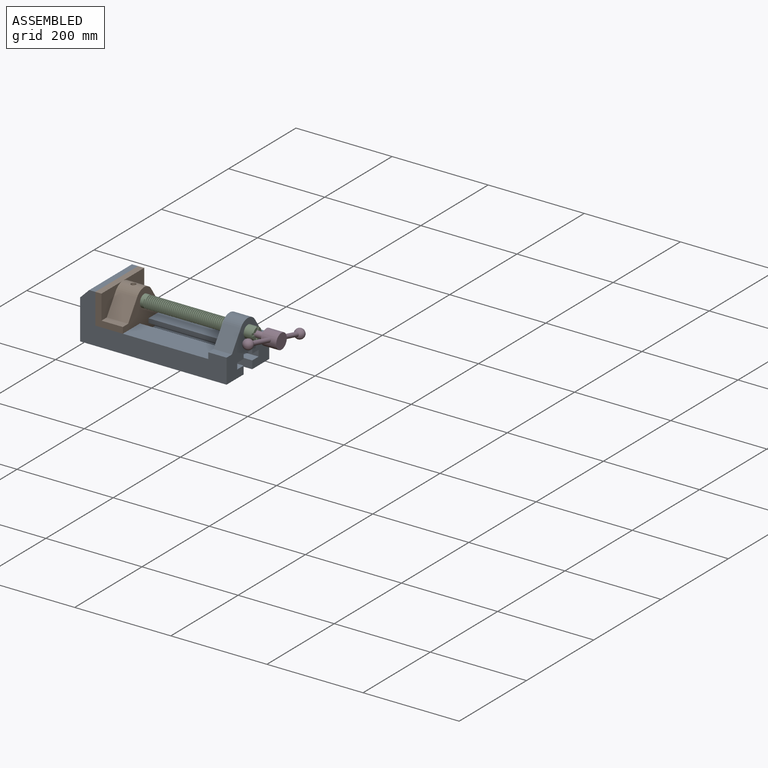
[diagram: assembled view]
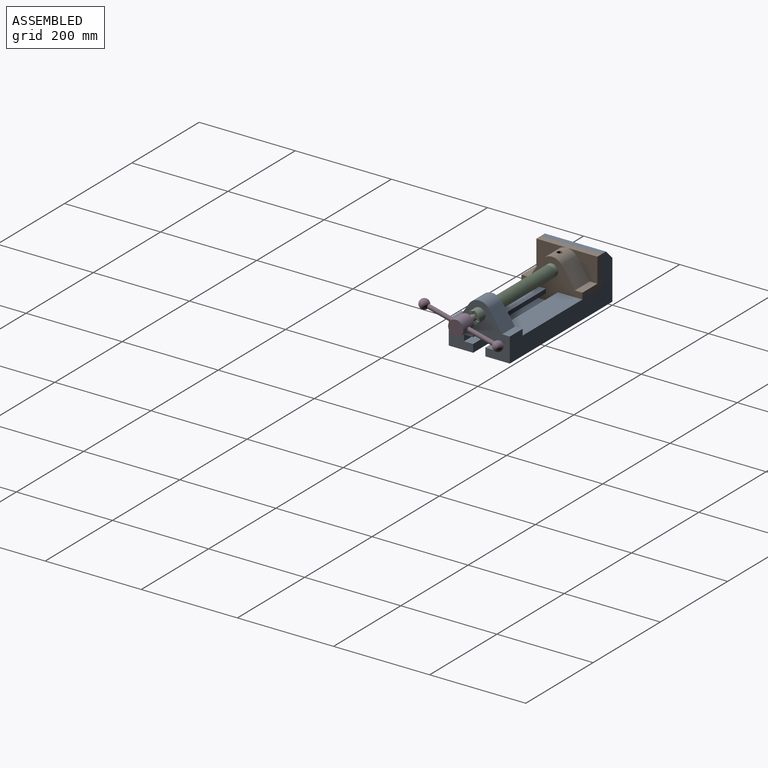
[diagram: assembled view, second angle]
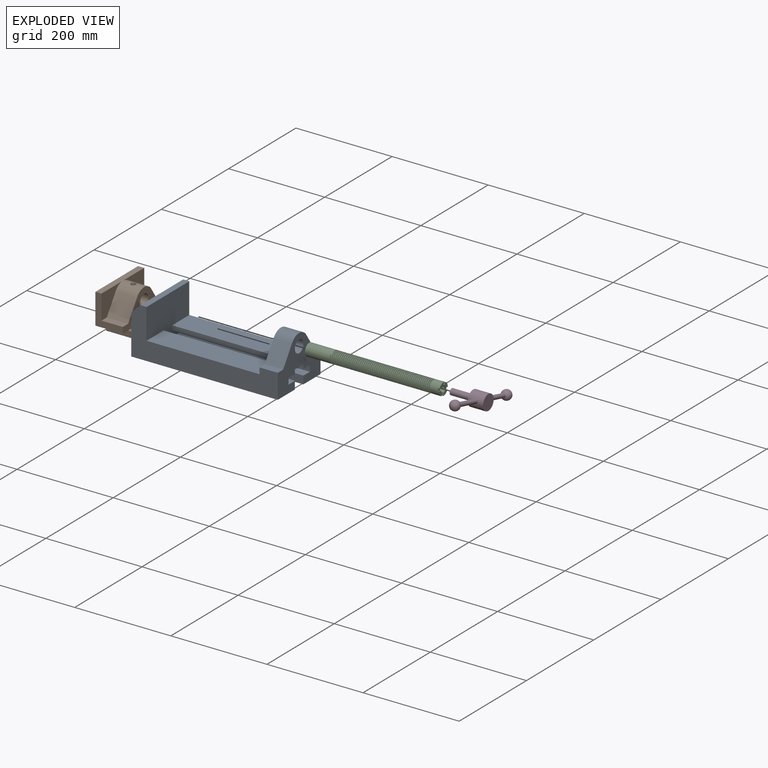
[diagram: exploded view]
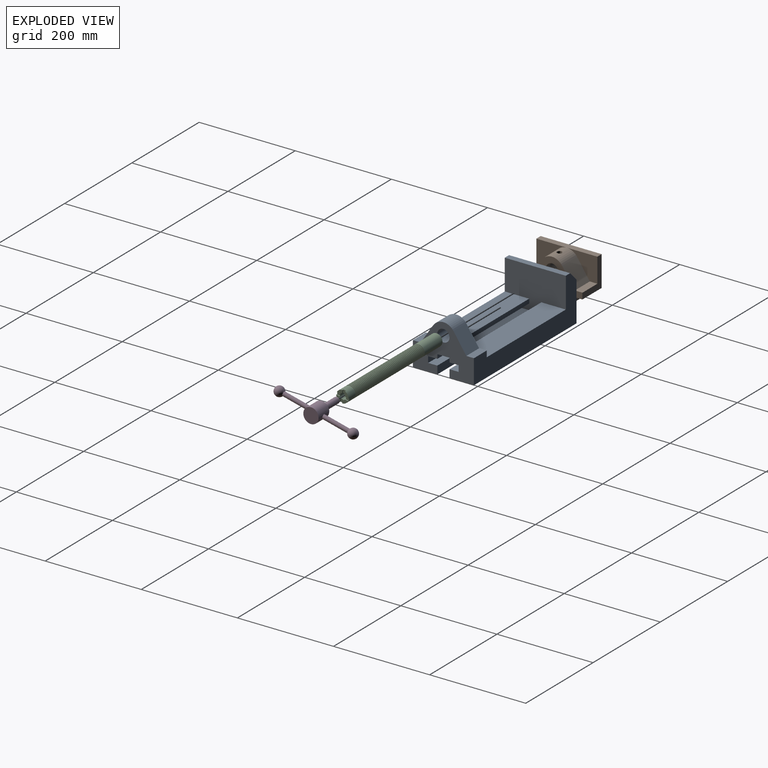
[diagram: exploded view, second angle]
ASSEMBLY  parts=4 mates=3
PART A: 28 faces, bbox 304.8x127x101.6 mm
  f0: plane 127x101.6mm, normal (1,0,0), area 7544.8mm2, adj f4,f5,f7,f11,f12,f13,f14,f15
  f1: plane 234.95x50.8mm, normal (0,0,1), area 11935.5mm2, adj f2,f4,f9,f23
  f2: plane 127x63.5mm, normal (-1,0,0), area 4157.7mm2, adj f1,f4,f5,f8,f11,f12,f13,f14
  f3: plane 127x12.7mm, normal (0,0,1), area 1612.9mm2, adj f4,f5,f9,f10
  f4: plane 304.8x101.6mm, normal (0,-1,0), area 13931.4mm2, adj f0,f1,f2,f3,f6,f7,f9,f10
  f5: plane 304.8x101.6mm, normal (0,1,0), area 13931.4mm2, adj f0,f2,f3,f6,f7,f8,f9,f10
  f6: plane 127x82.55mm, normal (-1,0,0), area 10483.8mm2, adj f4,f5,f7,f10
  f7: plane 304.8x127mm, normal (0,0,-1), area 31774.1mm2, adj f0,f4,f5,f6,f9,f18,f27
  f8: plane 234.95x50.8mm, normal (0,0,1), area 11935.5mm2, adj f2,f5,f9,f22
  f9: plane 127x101.6mm, normal (1,0,0), area 9516.1mm2, adj f1,f3,f4,f5,f7,f8,f18,f19
  f10: plane 127x19.05mm, normal (-0.71,0,0.71), area 3421.5mm2, adj f3,f4,f5,f6
  f11: plane 38.1x15.88mm, normal (0,0,1), area 604.8mm2, adj f0,f2,f5,f13
  f12: cylinder r=25.4mm len=42.19mm, axis (1,0,0), area 1896.6mm2, adj f0,f2,f13,f15
  f13: plane 39.55x38.1mm, normal (0,0.83,0.56), area 1814.5mm2, adj f0,f2,f11,f12
  f14: plane 38.1x15.88mm, normal (0,0,1), area 604.8mm2, adj f0,f2,f4,f15
  f15: plane 39.55x38.1mm, normal (0,-0.83,0.56), area 1814.5mm2, adj f0,f2,f12,f14
  f16: cylinder r=12.7mm len=38.1mm, axis (1,0,0), area 3040.2mm2, adj f0,f2
  f17: plane 38.1x25.4mm, normal (0,0,-1), area 967.7mm2, adj f0,f2,f22,f23
  f18: plane 273.05x16.51mm, normal (0,-1,0), area 4508.1mm2, adj f0,f7,f9,f19
  f19: plane 273.05x19.05mm, normal (0,0,1), area 5201.6mm2, adj f0,f9,f18,f20
  f20: plane 273.05x12.7mm, normal (0,-1,0), area 3467.7mm2, adj f0,f9,f19,f21
  f21: plane 273.05x19.05mm, normal (0,0,-1), area 5201.6mm2, adj f0,f9,f20,f22
  f22: plane 273.05x8.89mm, normal (0,-1,0), area 2427.4mm2, adj f0,f8,f9,f17,f21
  f23: plane 273.05x8.89mm, normal (0,1,0), area 2427.4mm2, adj f0,f1,f9,f17,f24
  f24: plane 273.05x19.05mm, normal (0,0,-1), area 5201.6mm2, adj f0,f9,f23,f25
  f25: plane 273.05x12.7mm, normal (0,1,0), area 3467.7mm2, adj f0,f9,f24,f26
  f26: plane 273.05x19.05mm, normal (0,0,1), area 5201.6mm2, adj f0,f9,f25,f27
  f27: plane 273.05x16.51mm, normal (0,1,0), area 4508.1mm2, adj f0,f7,f9,f26
PART B: 24 faces, bbox 127x57.2x85.1 mm
  f0: cylinder r=12.7mm len=44.45mm, axis (0,-1,0), area 3464.1mm2, adj f1,f19,f23
  f1: plane 127x85.09mm, normal (0,-1,0), area 5190mm2, adj f0,f3,f4,f5,f7,f8,f9,f10
  f2: plane 127x12.7mm, normal (0,0,1), area 1612.9mm2, adj f3,f5,f6,f18,f22
  f3: plane 63.5x57.15mm, normal (-1,0,0), area 1371mm2, adj f1,f2,f6,f12,f16,f18
  f4: plane 63.5x57.15mm, normal (0,0,-1), area 3629mm2, adj f1,f6,f7,f13
  f5: plane 63.5x57.15mm, normal (1,0,0), area 1371mm2, adj f1,f2,f6,f8,f20,f22
  f6: plane 127x85.09mm, normal (0,1,0), area 9096.8mm2, adj f2,f3,f4,f5,f7,f8,f9,f10
  f7: plane 57.15x12.7mm, normal (1,0,0), area 725.8mm2, adj f1,f4,f6,f10
  f8: plane 57.15x50.8mm, normal (0,0,-1), area 2903.2mm2, adj f1,f5,f6,f9
  f9: plane 57.15x8.89mm, normal (1,0,0), area 508.1mm2, adj f1,f6,f8,f10
  f10: plane 57.15x19.05mm, normal (0,0,1), area 1088.7mm2, adj f1,f6,f7,f9
  f11: plane 57.15x8.89mm, normal (-1,0,0), area 508.1mm2, adj f1,f6,f12,f14
  f12: plane 57.15x50.8mm, normal (0,0,-1), area 2903.2mm2, adj f1,f3,f6,f11
  f13: plane 57.15x12.7mm, normal (-1,0,0), area 725.8mm2, adj f1,f4,f6,f14
  f14: plane 57.15x19.05mm, normal (0,0,1), area 1088.7mm2, adj f1,f6,f11,f13
  f15: cylinder r=25.4mm len=44.45mm, axis (0,-1,0), area 2131.2mm2, adj f1,f17,f18,f21,f22,f23
  f16: plane 44.45x15.88mm, normal (0,0,1), area 705.6mm2, adj f1,f3,f17,f18
  f17: plane 44.45x39.55mm, normal (-0.83,0,0.56), area 2116.9mm2, adj f1,f15,f16,f18
  f18: plane 63.5x50.8mm, normal (0,-1,0), area 1700mm2, adj f2,f3,f15,f16,f17
  f19: plane 25.4x25.4mm, normal (0,-1,0), area 506.7mm2, adj f0
  f20: plane 44.45x15.88mm, normal (0,0,1), area 705.6mm2, adj f1,f5,f21,f22
  f21: plane 44.45x39.55mm, normal (0.83,0,0.56), area 2116.9mm2, adj f1,f15,f20,f22
  f22: plane 63.5x50.8mm, normal (0,-1,0), area 1700mm2, adj f2,f5,f15,f20,f21
  f23: cylinder r=5.08mm len=13.76mm, axis (0,0,1), area 413.9mm2, adj f0,f15
PART C: 79 faces, bbox 279.4x25.4x29.3 mm
  f0: plane 9.9x9.9mm, normal (1,0,0), area 62.3mm2, adj f4,f65,f68,f77
  f1: plane 9.9x9.9mm, normal (1,0,0), area 62.3mm2, adj f4,f69,f71,f77
  f2: plane 9.9x9.9mm, normal (1,0,0), area 62.3mm2, adj f4,f72,f74,f77
  f3: plane 9.9x9.9mm, normal (1,0,0), area 62.3mm2, adj f4,f66,f75,f77
  f4: cylinder r=12.7mm len=25.4mm, axis (-1,0,0), area 1540.5mm2, adj f0,f1,f2,f3,f5,f60,f63,f64
  f5: cylinder r=12.7mm len=25.4mm, axis (-1,0,0), area 101.3mm2, adj f4,f6,f63,f64
  f6: cylinder r=12.7mm len=25.4mm, axis (-1,0,0), area 101.3mm2, adj f5,f7,f63,f64
  f7: cylinder r=12.7mm len=25.4mm, axis (-1,0,0), area 101.4mm2, adj f6,f8,f63,f64
  f8: cylinder r=12.7mm len=25.4mm, axis (-1,0,0), area 101.4mm2, adj f7,f9,f63,f64
  f9: cylinder r=12.7mm len=25.4mm, axis (-1,0,0), area 101.3mm2, adj f8,f10,f63,f64
  f10: cylinder r=12.7mm len=25.4mm, axis (-1,0,0), area 101.3mm2, adj f9,f11,f63,f64
  f11: cylinder r=12.7mm len=25.4mm, axis (-1,0,0), area 101.3mm2, adj f10,f12,f63,f64
  f12: cylinder r=12.7mm len=25.4mm, axis (-1,0,0), area 101.3mm2, adj f11,f13,f63,f64
  f13: cylinder r=12.7mm len=25.4mm, axis (-1,0,0), area 101.3mm2, adj f12,f14,f63,f64
  f14: cylinder r=12.7mm len=25.4mm, axis (-1,0,0), area 101.4mm2, adj f13,f15,f63,f64
  f15: cylinder r=12.7mm len=25.4mm, axis (-1,0,0), area 101.4mm2, adj f14,f16,f63,f64
  f16: cylinder r=12.7mm len=25.4mm, axis (-1,0,0), area 101.3mm2, adj f15,f17,f63,f64
  f17: cylinder r=12.7mm len=25.4mm, axis (-1,0,0), area 101.3mm2, adj f16,f18,f63,f64
  f18: cylinder r=12.7mm len=25.4mm, axis (-1,0,0), area 101.3mm2, adj f17,f19,f63,f64
  f19: cylinder r=12.7mm len=25.4mm, axis (-1,0,0), area 101.3mm2, adj f18,f20,f63,f64
  f20: cylinder r=12.7mm len=25.4mm, axis (-1,0,0), area 101.3mm2, adj f19,f21,f63,f64
  f21: cylinder r=12.7mm len=25.4mm, axis (-1,0,0), area 101.4mm2, adj f20,f22,f63,f64
  f22: cylinder r=12.7mm len=25.4mm, axis (-1,0,0), area 101.4mm2, adj f21,f23,f63,f64
  f23: cylinder r=12.7mm len=25.4mm, axis (-1,0,0), area 101.3mm2, adj f22,f24,f63,f64
  f24: cylinder r=12.7mm len=25.4mm, axis (-1,0,0), area 101.3mm2, adj f23,f25,f63,f64
  f25: cylinder r=12.7mm len=25.4mm, axis (-1,0,0), area 101.3mm2, adj f24,f26,f63,f64
  f26: cylinder r=12.7mm len=25.4mm, axis (-1,0,0), area 101.3mm2, adj f25,f27,f63,f64
  f27: cylinder r=12.7mm len=25.4mm, axis (-1,0,0), area 101.3mm2, adj f26,f28,f63,f64
  f28: cylinder r=12.7mm len=25.4mm, axis (-1,0,0), area 101.4mm2, adj f27,f29,f63,f64
  f29: cylinder r=12.7mm len=25.4mm, axis (-1,0,0), area 101.4mm2, adj f28,f30,f63,f64
  f30: cylinder r=12.7mm len=25.4mm, axis (-1,0,0), area 101.3mm2, adj f29,f31,f63,f64
  f31: cylinder r=12.7mm len=25.4mm, axis (-1,0,0), area 101.3mm2, adj f30,f32,f63,f64
  f32: cylinder r=12.7mm len=25.4mm, axis (-1,0,0), area 101.3mm2, adj f31,f33,f63,f64
  f33: cylinder r=12.7mm len=25.4mm, axis (-1,0,0), area 101.3mm2, adj f32,f34,f63,f64
  f34: cylinder r=12.7mm len=25.4mm, axis (-1,0,0), area 101.3mm2, adj f33,f35,f63,f64
  f35: cylinder r=12.7mm len=25.4mm, axis (-1,0,0), area 101.4mm2, adj f34,f36,f63,f64
  f36: cylinder r=12.7mm len=25.4mm, axis (-1,0,0), area 101.4mm2, adj f35,f37,f63,f64
  f37: cylinder r=12.7mm len=25.4mm, axis (-1,0,0), area 101.3mm2, adj f36,f38,f63,f64
  f38: cylinder r=12.7mm len=25.4mm, axis (-1,0,0), area 101.3mm2, adj f37,f39,f63,f64
  f39: cylinder r=12.7mm len=25.4mm, axis (-1,0,0), area 101.3mm2, adj f38,f40,f63,f64
  f40: cylinder r=12.7mm len=25.4mm, axis (-1,0,0), area 101.3mm2, adj f39,f41,f63,f64
  f41: cylinder r=12.7mm len=25.4mm, axis (-1,0,0), area 101.3mm2, adj f40,f42,f63,f64
  f42: cylinder r=12.7mm len=25.4mm, axis (-1,0,0), area 101.4mm2, adj f41,f43,f63,f64
  f43: cylinder r=12.7mm len=25.4mm, axis (-1,0,0), area 101.4mm2, adj f42,f44,f63,f64
  f44: cylinder r=12.7mm len=25.4mm, axis (-1,0,0), area 101.3mm2, adj f43,f45,f63,f64
  f45: cylinder r=12.7mm len=25.4mm, axis (-1,0,0), area 101.3mm2, adj f44,f46,f63,f64
  f46: cylinder r=12.7mm len=25.4mm, axis (-1,0,0), area 101.3mm2, adj f45,f47,f63,f64
  f47: cylinder r=12.7mm len=25.4mm, axis (-1,0,0), area 101.3mm2, adj f46,f48,f63,f64
  f48: cylinder r=12.7mm len=25.4mm, axis (-1,0,0), area 101.3mm2, adj f47,f49,f63,f64
  f49: cylinder r=12.7mm len=25.4mm, axis (-1,0,0), area 101.4mm2, adj f48,f50,f63,f64
  f50: cylinder r=12.7mm len=25.4mm, axis (-1,0,0), area 101.4mm2, adj f49,f51,f63,f64
  f51: cylinder r=12.7mm len=25.4mm, axis (-1,0,0), area 101.3mm2, adj f50,f52,f63,f64
  f52: cylinder r=12.7mm len=25.4mm, axis (-1,0,0), area 101.3mm2, adj f51,f53,f63,f64
  f53: cylinder r=12.7mm len=25.4mm, axis (-1,0,0), area 101.3mm2, adj f52,f54,f63,f64
  f54: cylinder r=12.7mm len=25.4mm, axis (-1,0,0), area 101.3mm2, adj f53,f55,f63,f64
  f55: cylinder r=12.7mm len=25.4mm, axis (-1,0,0), area 101.3mm2, adj f54,f56,f63,f64
  f56: cylinder r=12.7mm len=25.4mm, axis (-1,0,0), area 101.4mm2, adj f55,f57,f63,f64
  f57: cylinder r=12.7mm len=25.4mm, axis (-1,0,0), area 101.4mm2, adj f56,f58,f63,f64
  f58: cylinder r=12.7mm len=56.32mm, axis (-1,0,0), area 4271.8mm2, adj f57,f59,f61,f63,f64
  f59: plane 25.4x25.4mm, normal (-1,0,0), area 506.7mm2, adj f58
  f60: plane 2.54x2.54mm, normal (0,0,1), area 4.8mm2, adj f4,f62,f63,f64
  f61: plane 2.55x2.33mm, normal (0,0.41,0.91), area 4.8mm2, adj f58,f62,f63,f64
  f62: cylinder r=10.16mm len=209.17mm, axis (-1,0,0), area 4414.6mm2, adj f60,f61,f63,f64
  f63: bspline ~208.92x29.33mm, area 10273.8mm2, adj f4,f5,f6,f7,f8,f9,f10,f11
  f64: bspline ~208.92x29.33mm, area 10275.9mm2, adj f4,f5,f6,f7,f8,f9,f10,f11
  f65: plane 6.62x2.54mm, normal (0,0,-1), area 16.8mm2, adj f0,f4,f67,f77
  f66: plane 6.62x2.54mm, normal (0,0,1), area 16.8mm2, adj f3,f4,f67,f77
  f67: plane 6.88x5.08mm, normal (1,0,0), area 32.7mm2, adj f4,f65,f66,f77
  f68: plane 6.62x2.54mm, normal (0,-1,0), area 16.8mm2, adj f0,f4,f70,f77
  f69: plane 6.62x2.54mm, normal (0,1,0), area 16.8mm2, adj f1,f4,f70,f77
  f70: plane 6.88x5.08mm, normal (1,0,0), area 32.7mm2, adj f4,f68,f69,f77
  f71: plane 6.62x2.54mm, normal (0,0,-1), area 16.8mm2, adj f1,f4,f73,f77
  f72: plane 6.62x2.54mm, normal (0,0,1), area 16.8mm2, adj f2,f4,f73,f77
  f73: plane 6.88x5.08mm, normal (1,0,0), area 32.7mm2, adj f4,f71,f72,f77
  f74: plane 6.62x2.54mm, normal (0,1,0), area 16.8mm2, adj f2,f4,f76,f77
  f75: plane 6.62x2.54mm, normal (0,-1,0), area 16.8mm2, adj f3,f4,f76,f77
  f76: plane 6.88x5.08mm, normal (1,0,0), area 32.7mm2, adj f4,f74,f75,f77
  f77: cylinder r=6.35mm len=25.4mm, axis (1,0,0), area 960.3mm2, adj f0,f1,f2,f3,f65,f66,f67,f68
  f78: plane 12.7x12.7mm, normal (1,0,0), area 126.7mm2, adj f77
PART D: 9 faces, bbox 31.8x178.3x76.2 mm
  f0: cylinder r=15.88mm len=31.75mm, axis (0,0,-1), area 3041.5mm2, adj f1,f2,f5,f6
  f1: plane 31.75x31.75mm, normal (0,0,1), area 791.7mm2, adj f0
  f2: plane 31.75x31.75mm, normal (0,0,-1), area 665.1mm2, adj f0,f3
  f3: cylinder r=6.35mm len=44.45mm, axis (0,0,1), area 1773.5mm2, adj f2,f4
  f4: plane 12.7x12.7mm, normal (0,0,-1), area 126.7mm2, adj f3
  f5: cylinder r=4.45mm len=54.61mm, axis (0,1,0), area 1516.3mm2, adj f0,f7
  f6: cylinder r=4.45mm len=54.61mm, axis (0,1,0), area 1516.3mm2, adj f0,f8
  f7: sphere r=10.16mm, area 1231.8mm2, adj f5
  f8: sphere r=10.16mm, area 1231.8mm2, adj f6
PLACE A at identity fixed
PLACE B rot(axis=(0,0,1),90deg) t=(31.75,-127,16.51)mm
PLACE C rot(axis=(1,0,0),165.9deg) t=(44.45,-63.5,76.2)mm
PLACE D rot(axis=(0.7,0.09,0.7),170deg) t=(342.9,-63.5,76.2)mm
MATE slider A.f9 <-> B.f6  axis (1,0,0) through (31.75,-127,38.1)mm
MATE revolute C.f4 <-> B.f0  axis (-1,0,0) through (44.45,-63.5,76.2)mm
MATE fastened D.f0 <-> C.f4  axis (-1,0,0) through (298.45,-63.5,76.2)mm
